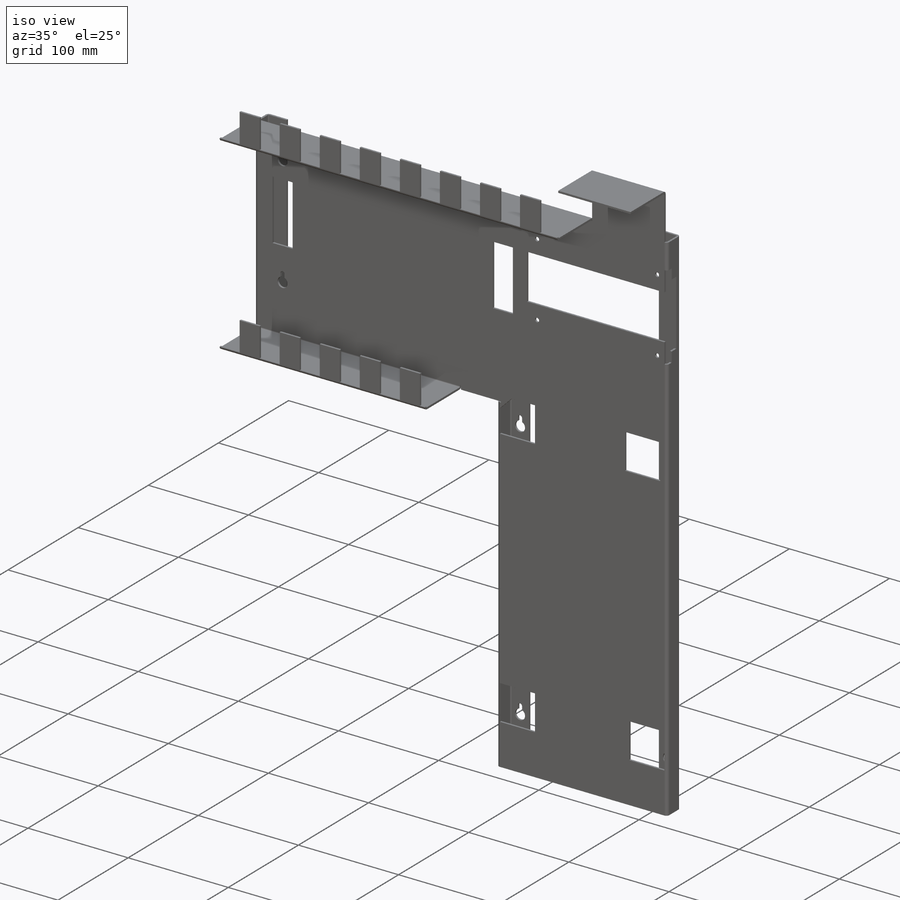
[diagram: iso view]
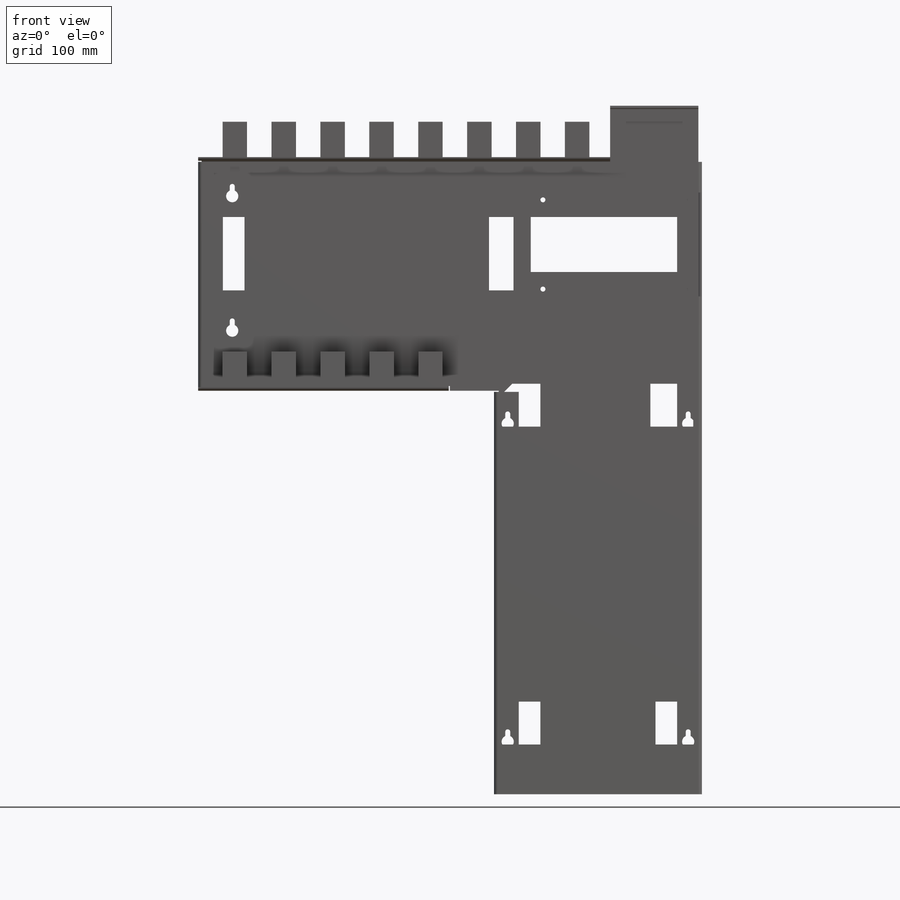
[diagram: front view]
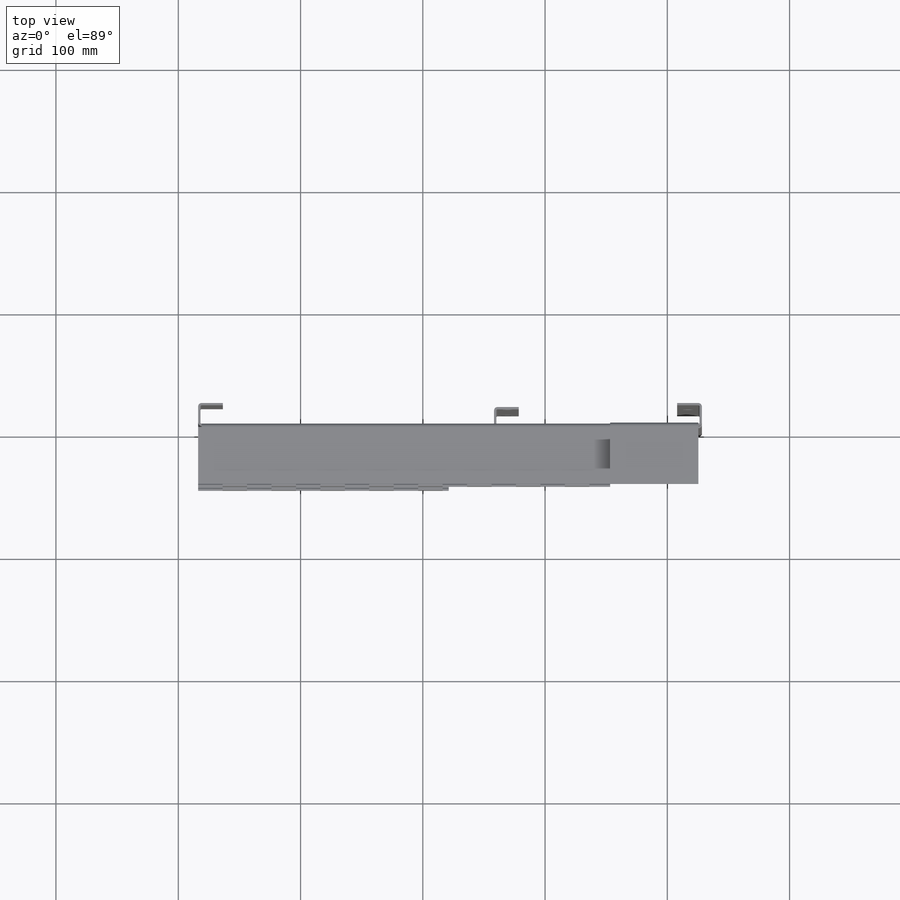
[diagram: top view]
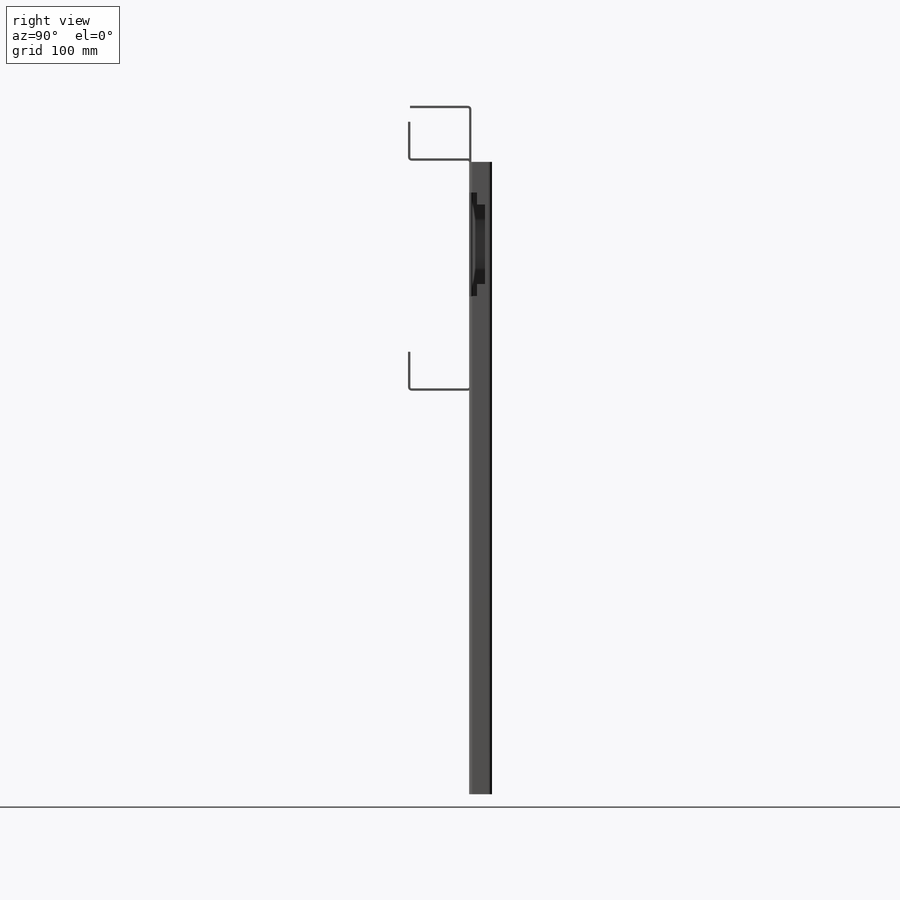
[diagram: right view]
SOLIDWORKS PART (.sldprt)
format: sldprt  version: not decoded by parser v0  size: 2,074,624 bytes
history: native  units: mm
features: sketch x79, sheet_metal_op x25, cut_extrude x14, material x1 + 24 further entries (+13 scaffold rows collapsed; 24 parser-record rows omitted)
feature tree (180):
  scaffold x13  (default folders/planes/origin — collapsed)
  material  "Material <not specified>"
  sketch  "Sketch1"  dims[c1.D1=520.0mm c1.D2=412.0mm c2.D1=1.27mm c2.D2=0.5 c2.D3=0.0mm c2.D6=500.0mm]
  sheet_metal_op  "Base-Flange1"
  sketch  "Sketch6"  dims[D1=170.0mm D2=190.0mm D3=500.0mm]
  cut_extrude  "Cut-Extrude1"  Depth=10mm
  sketch  "Sketch9"  dims[c1.D1=205.0mm c2.D1=1.0mm c2.D4=90.0deg c2.D5=1.0 c2.D8=0.024mm c2.D9=0.024mm c3.D1=1.0mm c3.D2=500.0mm c3.D3=0.0mm c3.D6=10.0mm c3.D7=~51.84938mm]
  sketch  "Sketch12"  dims[c1.D1=200.0mm c2.D1=1.0mm c2.D4=90.0deg c2.D5=2.0 c2.D8=0.024mm c2.D9=0.024mm c3.D1=1.0mm c3.D2=500.0mm c3.D3=0.0mm c3.D6=10.0mm c3.D7=~31.84938mm]
  sketch  "Sketch15"  dims[c1.D1=1.0mm c1.D4=90.0deg c1.D5=3.0 c1.D8=0.024mm c1.D9=0.024mm c2.D1=1.7mm c2.D2=500.0mm c2.D3=0.0mm c2.D6=10.0mm c2.D7=50.0mm]
  sketch  "Sketch18"  dims[c1.D1=1.0mm c1.D4=90.0deg c1.D5=4.0 c1.D8=0.024mm c1.D9=0.024mm c2.D1=1.7mm c2.D2=500.0mm c2.D3=0.0mm c2.D6=10.0mm c2.D7=30.0mm]
  sketch  "Sketch19"  dims[D1=20.0mm D2=12.0]
  cut_extrude  "Cut-Extrude2"  Depth=10mm
  sketch  "Sketch20"  dims[D1=20.0mm D2=8.0]
  cut_extrude  "Cut-Extrude3"  Depth=10mm
  sketch  "Sketch27"
  sketch  "Sketch28"
  sketch  "Sketch29"  dims[c1.D1=329.0mm c2.D1=1.0mm c2.D4=90.0deg c2.D5=5.0 c2.D8=0.024mm c2.D9=0.024mm c3.D1=1.0mm c3.D4=90.0deg c3.D5=6.0 c3.D8=0.024mm c3.D9=0.024mm c4.D1=1.0mm c4.D4=90.0deg c4.D5=7.0 c4.D8=0.024mm c4.D9=0.024mm c5.D1=1.0mm c5.D2=500.0mm c5.D3=0.0mm c5.D6=10.0mm c5.D7=~16.84938mm c5.D8=1.0mm]
  sketch  "Sketch31"  dims[c1.D1=0.05mm c1.D4=180.0deg c1.D5=8.0 c1.D8=~0.94869mm c1.D9=~0.94869mm c2.D1=0.05mm c2.D7=30.0mm c2.D8=0.1mm c2.D9=1.0mm]
  sketch  "Sketch34"  dims[c1.D1=1.0mm c1.D4=90.0deg c1.D5=9.0 c1.D8=0.85mm c1.D9=0.85mm c2.D1=1.7mm c2.D2=500.0mm c2.D3=0.0mm c2.D6=10.0mm c2.D7=30.0mm]
  sketch  "Sketch41"
  sketch  "Sketch42"  dims[c1.D1=1.0mm c1.D4=90.0deg c1.D5=10.0 c1.D8=0.85mm c1.D9=0.85mm c2.D1=1.0mm c2.D4=90.0deg c2.D5=11.0 c2.D8=0.85mm c2.D9=0.85mm c3.D1=1.7mm c3.D2=500.0mm c3.D3=0.0mm c3.D6=10.0mm c3.D7=20.0mm c3.D8=1.0mm]
  sketch  "Sketch43"  dims[D1=20.0mm D2=20.0mm D3=2.0 D4=2.0]
  sketch  "Sketch44"  dims[c1.D1=50.0mm c1.D2=35.0mm c1.D3=50.0mm c1.D4=35.0mm c1.D5=45.0mm c1.D6=45.0mm c1.D7=35.0mm c1.D8=35.0mm c1.D9=~8.813751mm c2.D9=45.0deg c2.D10=12.0mm]
  cut_extrude  "Cut-Extrude6"  Depth=3.21412mm
  sketch  "Sketch45"  dims[c1.D1=4.08mm c1.D2=4.08mm c1.D3=4.08mm c1.D4=4.08mm c1.D6=5.0mm c1.D7=5.0mm c1.D8=5.0mm c2.D7=4.08mm c2.D5=4.08mm c2.D6=4.08mm c2.D8=4.08mm c3.D5=6.0mm c3.D6=6.0mm c3.D7=6.0mm c3.D8=6.0mm c4.D7=9.0mm c4.D5=9.0mm c4.D6=51.0mm c4.D8=180.0mm c5.D6=131.0mm]
  cut_extrude  "Cut-Extrude7"  Depth=3.21412mm
  sketch  "Sketch51"  dims[c1.D1=1.0mm c1.D4=90.0deg c1.D5=12.0 c1.D8=0.85mm c1.D9=0.85mm c2.D1=1.7mm c2.D2=500.0mm c2.D3=0.0mm c2.D6=10.0mm c2.D7=20.0mm]
  sketch  "Sketch46"  dims[c1.D1=4.08mm c1.D2=5.0mm c1.D4=5.0mm c2.D2=110.0mm c2.D3=25.0mm c2.D4=20.0mm]
  cut_extrude  "Cut-Extrude8"  Depth=10mm
  sketch  "Sketch52"  dims[D1=75.0mm]
  cut_extrude  "Cut-Extrude9"  Depth=70mm
  sketch  "Sketch55"  dims[c1.D1=1.0mm c1.D4=90.0deg c1.D5=13.0 c1.D8=0.85mm c1.D9=0.85mm c2.D1=1.7mm c2.D2=500.0mm c2.D3=0.0mm c2.D6=43.0mm c2.D7=50.0mm]
  sketch  "Sketch56"  dims[D1=20.0mm D2=80.0mm D3=200.0mm D4=15.0mm D5=15.0mm]
  cut_extrude  "Cut-Extrude10"  Depth=10mm
  sketch  "Sketch57"  dims[D1=45.0mm D2=20.0mm D3=12.0mm D4=10.0mm D5=10.0mm D6=4.0mm]
  cut_extrude  "Cut-Extrude11"  Depth=140mm
  sketch  "Sketch58"  dims[D1=4.08mm]
  cut_extrude  "Cut-Extrude12"  Depth=10mm
  sketch  "Sketch59"  dims[D1=10.0mm D3=5.0mm D2=8.0mm D4=8.0mm]
  cut_extrude  "Cut-Extrude13"  Depth=10mm
  sketch  "Sketch60"  dims[D1=10.0mm D2=8.0mm D3=8.0mm]
  cut_extrude  "Cut-Extrude14"  Depth=10mm
  sketch  "Sketch61"
  cut_extrude  "Cut-Extrude15"  Depth=10mm
  sketch  "Sketch62"
  cut_extrude  "Cut-Extrude16"  Depth=62mm
  sketch  "Bend-Lines1"
  sketch  "Bounding-Box1"
  sheet_metal_op  "Sheet-Metal1"
  "Flat-Pattern1"
  sketch  "Bend-Lines2"
  sketch  "Bounding-Box2"
  parser-record x24  (decoder bookkeeping rows leaked as tree rows — omitted from the tree; the rows remain in map.json)
  sheet_metal_op  "Sheet-Metal2"
  "Flat-Pattern1"
  sketch  "Bend-Lines2"
  sketch  "Bounding-Box2"
  sheet_metal_op  "Sheet-Metal3"
  "Flat-Pattern1"
  sketch  "Bend-Lines2"
  sketch  "Bounding-Box2"
  sheet_metal_op  "Sheet-Metal4"
  "Flat-Pattern1"
  sketch  "Bend-Lines2"
  sketch  "Bounding-Box2"
  sheet_metal_op  "Sheet-Metal5"
  "Flat-Pattern1"
  sketch  "Bend-Lines2"
  sketch  "Bounding-Box2"
  sheet_metal_op  "Sheet-Metal6"
  "Flat-Pattern1"
  sketch  "Bend-Lines2"
  sketch  "Bounding-Box2"
  sheet_metal_op  "Sheet-Metal7"
  "Flat-Pattern1"
  sketch  "Bend-Lines2"
  sketch  "Bounding-Box2"
  sheet_metal_op  "Sheet-Metal8"
  "Flat-Pattern1"
  sketch  "Bend-Lines2"
  sketch  "Bounding-Box2"
  sheet_metal_op  "Sheet-Metal9"
  "Flat-Pattern1"
  sketch  "Bend-Lines2"
  sketch  "Bounding-Box2"
  sheet_metal_op  "Sheet-Metal10"
  "Flat-Pattern1"
  sketch  "Bend-Lines2"
  sketch  "Bounding-Box2"
  sheet_metal_op  "Sheet-Metal11"
  "Flat-Pattern1"
  sketch  "Bend-Lines2"
  sketch  "Bounding-Box2"
  sheet_metal_op  "Sheet-Metal14"
  "Flat-Pattern1"
  sketch  "Bend-Lines2"
  sketch  "Bounding-Box2"
  sheet_metal_op  "Sheet-Metal15"
  "Flat-Pattern1"
  sketch  "Bend-Lines2"
  sketch  "Bounding-Box2"
  sheet_metal_op  "Sheet-Metal16"
  "Flat-Pattern1"
  sketch  "Bend-Lines2"
  sketch  "Bounding-Box2"
  sheet_metal_op  "Sheet-Metal17"
  "Flat-Pattern1"
  sketch  "Bend-Lines2"
  sketch  "Bounding-Box2"
  sheet_metal_op  "Sheet-Metal18"
  "Flat-Pattern1"
  sketch  "Bend-Lines2"
  sketch  "Bounding-Box2"
  sheet_metal_op  "Sheet-Metal19"
  "Flat-Pattern1"
  sketch  "Bend-Lines2"
  sketch  "Bounding-Box2"
  sheet_metal_op  "Sheet-Metal20"
  "Flat-Pattern1"
  sketch  "Bend-Lines2"
  sketch  "Bounding-Box2"
  sheet_metal_op  "Sheet-Metal21"
  "Flat-Pattern1"
  sketch  "Bend-Lines2"
  sketch  "Bounding-Box2"
  sheet_metal_op  "Sheet-Metal22"
  "Flat-Pattern1"
  sketch  "Bend-Lines2"
  sketch  "Bounding-Box2"
  sheet_metal_op  "Sheet-Metal23"
  "Flat-Pattern1"
  sketch  "Bend-Lines2"
  sketch  "Bounding-Box2"
  sheet_metal_op  "Sheet-Metal24"
  "Flat-Pattern1"
  sketch  "Bend-Lines2"
  sketch  "Bounding-Box2"
  sheet_metal_op  "Sheet-Metal25"
  "Flat-Pattern1"
  sketch  "Bend-Lines2"
  sketch  "Bounding-Box2"
  sheet_metal_op  "Sheet-Metal26"
  "Flat-Pattern1"
  sketch  "Bend-Lines2"
  sketch  "Bounding-Box2"
decode coverage: 38 of 118 modeling features carry decoded parameters; 24 rows unclassified (native names shown)
note: ~ marks probable driven/reference dimensions
note: suppression state not decoded; provenance and decode notes live in map.json
